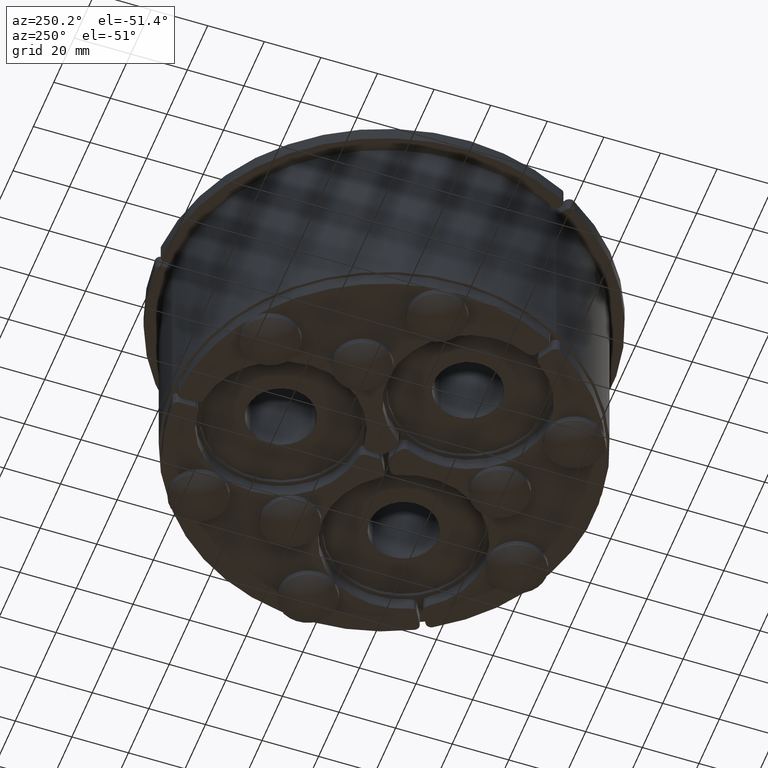
[diagram: clean part render]
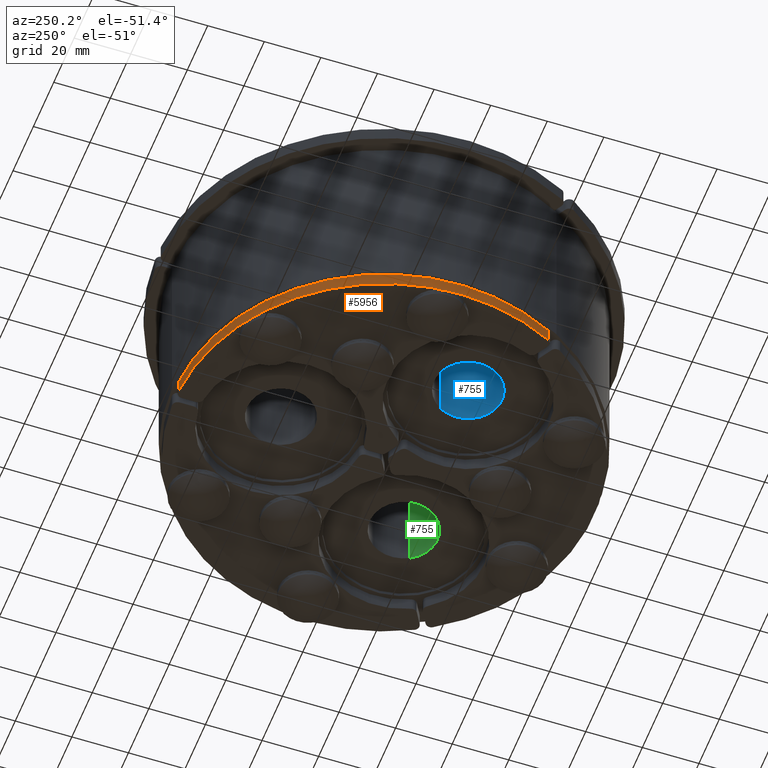
[diagram: same view with three faces highlighted in distinct colors, each labeled with its STEP entity id]
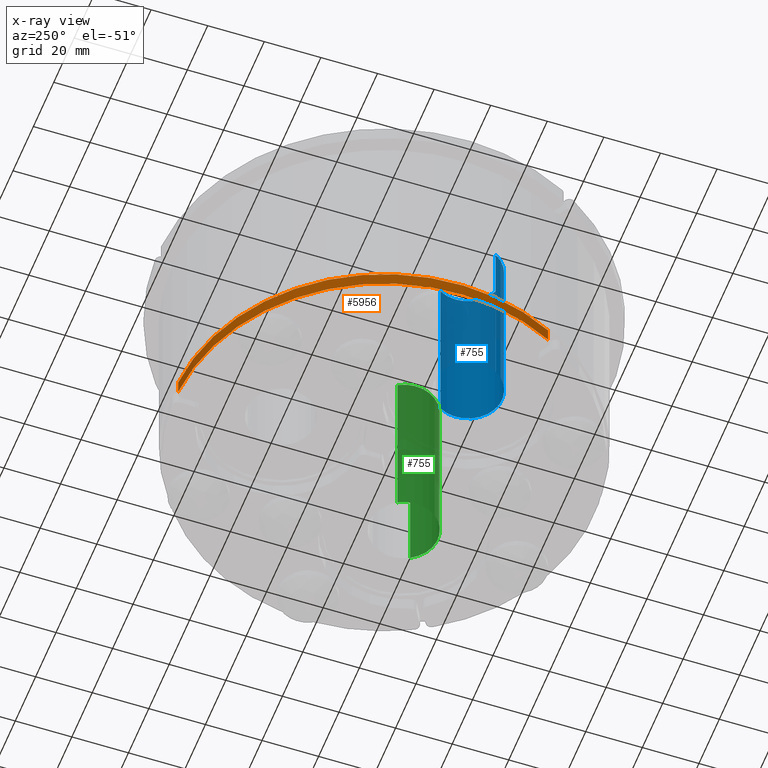
[diagram: x-ray of the same camera — body ghosted, the three highlighted faces saturated]
A machine part, auxiliary view with three faces highlighted in distinct colors.
The next image is the same camera in x-ray (body ghosted, the three faces saturated) — at least one of them is partly hidden behind the body in this view.
Their STEP definitions:

[orange] entity #5956 — the highlighted cylindrical surface (partial cylindrical patch) has radius 74 mm, axis along (0, 0, 1).
#5500=CARTESIAN_POINT('',(62.488558943326886,-39.638112987204153,5.0));
#5501=VERTEX_POINT('',#5500);
#5509=CARTESIAN_POINT('',(62.488558943326886,-39.638112987204153,0.0));
#5510=VERTEX_POINT('',#5509);
#5511=CARTESIAN_POINT('',(62.488558943326879,-39.638112987204153,5.0));
#5512=DIRECTION('',(0.0,0.0,-1.0));
#5513=VECTOR('',#5512,5.0);
#5514=LINE('',#5511,#5513);
#5515=EDGE_CURVE('',#5501,#5510,#5514,.T.);
#5572=CARTESIAN_POINT('',(-62.488558943326851,-39.63811298720421,0.0));
#5573=VERTEX_POINT('',#5572);
#5574=CARTESIAN_POINT('',(0.0,0.0,0.0));
#5575=DIRECTION('',(0.0,0.0,1.0));
#5576=DIRECTION('',(-0.859189568782182,-0.51165739015076,0.0));
#5577=AXIS2_PLACEMENT_3D('',#5574,#5575,#5576);
#5578=CIRCLE('',#5577,74.0);
#5579=EDGE_CURVE('',#5573,#5510,#5578,.T.);
#5912=CARTESIAN_POINT('',(-62.488558943326851,-39.63811298720421,5.0));
#5913=VERTEX_POINT('',#5912);
#5930=CARTESIAN_POINT('',(-62.488558943326844,-39.63811298720421,0.0));
#5931=DIRECTION('',(0.0,0.0,1.0));
#5932=VECTOR('',#5931,5.0);
#5933=LINE('',#5930,#5932);
#5934=EDGE_CURVE('',#5573,#5913,#5933,.T.);
#5939=CARTESIAN_POINT('',(0.0,0.0,0.0));
#5940=DIRECTION('',(0.0,0.0,1.0));
#5941=DIRECTION('',(-0.859189568782182,-0.51165739015076,0.0));
#5942=AXIS2_PLACEMENT_3D('',#5939,#5940,#5941);
#5943=CYLINDRICAL_SURFACE('',#5942,74.0);
#5944=ORIENTED_EDGE('',*,*,#5515,.F.);
#5945=CARTESIAN_POINT('',(0.0,0.0,5.0));
#5946=DIRECTION('',(0.0,0.0,1.0));
#5947=DIRECTION('',(-0.859189568782182,-0.51165739015076,0.0));
#5948=AXIS2_PLACEMENT_3D('',#5945,#5946,#5947);
#5949=CIRCLE('',#5948,74.0);
#5950=EDGE_CURVE('',#5913,#5501,#5949,.T.);
#5951=ORIENTED_EDGE('',*,*,#5950,.F.);
#5952=ORIENTED_EDGE('',*,*,#5934,.F.);
#5953=ORIENTED_EDGE('',*,*,#5579,.T.);
#5954=EDGE_LOOP('',(#5944,#5951,#5952,#5953));
#5955=FACE_OUTER_BOUND('',#5954,.T.);
#5956=ADVANCED_FACE('',(#5955),#5943,.T.);

[blue] entity #755 — the highlighted cylindrical surface (edge-blend (fillet) strip) has radius 12 mm, axis along (0, 0, 1).
#633=CARTESIAN_POINT('',(-31.250000000000004,-1.194959E-015,12.000000000000002));
#634=VERTEX_POINT('',#633);
#652=CARTESIAN_POINT('',(-31.25,2.664535E-015,-12.000000000000002));
#653=VERTEX_POINT('',#652);
#660=CARTESIAN_POINT('',(-31.250000000000004,0.0,0.0));
#661=DIRECTION('',(1.0,0.0,0.0));
#662=DIRECTION('',(0.0,0.0,-1.0));
#663=AXIS2_PLACEMENT_3D('',#660,#661,#662);
#664=CIRCLE('',#663,12.000000000000002);
#665=EDGE_CURVE('',#653,#634,#664,.T.);
#707=CARTESIAN_POINT('',(31.25,-1.194959E-015,12.000000000000002));
#708=VERTEX_POINT('',#707);
#715=CARTESIAN_POINT('',(31.25,2.664535E-015,-12.000000000000002));
#716=VERTEX_POINT('',#715);
#717=CARTESIAN_POINT('',(31.25,0.0,0.0));
#718=DIRECTION('',(1.0,0.0,0.0));
#719=DIRECTION('',(0.0,0.0,-1.0));
#720=AXIS2_PLACEMENT_3D('',#717,#718,#719);
#721=CIRCLE('',#720,12.000000000000002);
#722=EDGE_CURVE('',#716,#708,#721,.T.);
#734=CARTESIAN_POINT('',(0.0,0.0,0.0));
#735=DIRECTION('',(1.0,0.0,0.0));
#736=DIRECTION('',(0.0,0.0,-1.0));
#737=AXIS2_PLACEMENT_3D('',#734,#735,#736);
#738=CYLINDRICAL_SURFACE('',#737,12.000000000000002);
#739=CARTESIAN_POINT('',(31.25,-1.194959E-015,12.000000000000002));
#740=DIRECTION('',(-1.0,0.0,0.0));
#741=VECTOR('',#740,62.5);
#742=LINE('',#739,#741);
#743=EDGE_CURVE('',#708,#634,#742,.T.);
#744=ORIENTED_EDGE('',*,*,#743,.T.);
#745=ORIENTED_EDGE('',*,*,#665,.F.);
#746=CARTESIAN_POINT('',(31.25,2.664535E-015,-12.000000000000002));
#747=DIRECTION('',(-1.0,0.0,0.0));
#748=VECTOR('',#747,62.5);
#749=LINE('',#746,#748);
#750=EDGE_CURVE('',#716,#653,#749,.T.);
#751=ORIENTED_EDGE('',*,*,#750,.F.);
#752=ORIENTED_EDGE('',*,*,#722,.T.);
#753=EDGE_LOOP('',(#744,#745,#751,#752));
#754=FACE_OUTER_BOUND('',#753,.T.);
#755=ADVANCED_FACE('',(#754),#738,.F.);

[green] entity #755 — the highlighted cylindrical surface (edge-blend (fillet) strip) has radius 12 mm, axis along (0, 0, 1).
#633=CARTESIAN_POINT('',(-31.250000000000004,-1.194959E-015,12.000000000000002));
#634=VERTEX_POINT('',#633);
#652=CARTESIAN_POINT('',(-31.25,2.664535E-015,-12.000000000000002));
#653=VERTEX_POINT('',#652);
#660=CARTESIAN_POINT('',(-31.250000000000004,0.0,0.0));
#661=DIRECTION('',(1.0,0.0,0.0));
#662=DIRECTION('',(0.0,0.0,-1.0));
#663=AXIS2_PLACEMENT_3D('',#660,#661,#662);
#664=CIRCLE('',#663,12.000000000000002);
#665=EDGE_CURVE('',#653,#634,#664,.T.);
#707=CARTESIAN_POINT('',(31.25,-1.194959E-015,12.000000000000002));
#708=VERTEX_POINT('',#707);
#715=CARTESIAN_POINT('',(31.25,2.664535E-015,-12.000000000000002));
#716=VERTEX_POINT('',#715);
#717=CARTESIAN_POINT('',(31.25,0.0,0.0));
#718=DIRECTION('',(1.0,0.0,0.0));
#719=DIRECTION('',(0.0,0.0,-1.0));
#720=AXIS2_PLACEMENT_3D('',#717,#718,#719);
#721=CIRCLE('',#720,12.000000000000002);
#722=EDGE_CURVE('',#716,#708,#721,.T.);
#734=CARTESIAN_POINT('',(0.0,0.0,0.0));
#735=DIRECTION('',(1.0,0.0,0.0));
#736=DIRECTION('',(0.0,0.0,-1.0));
#737=AXIS2_PLACEMENT_3D('',#734,#735,#736);
#738=CYLINDRICAL_SURFACE('',#737,12.000000000000002);
#739=CARTESIAN_POINT('',(31.25,-1.194959E-015,12.000000000000002));
#740=DIRECTION('',(-1.0,0.0,0.0));
#741=VECTOR('',#740,62.5);
#742=LINE('',#739,#741);
#743=EDGE_CURVE('',#708,#634,#742,.T.);
#744=ORIENTED_EDGE('',*,*,#743,.T.);
#745=ORIENTED_EDGE('',*,*,#665,.F.);
#746=CARTESIAN_POINT('',(31.25,2.664535E-015,-12.000000000000002));
#747=DIRECTION('',(-1.0,0.0,0.0));
#748=VECTOR('',#747,62.5);
#749=LINE('',#746,#748);
#750=EDGE_CURVE('',#716,#653,#749,.T.);
#751=ORIENTED_EDGE('',*,*,#750,.F.);
#752=ORIENTED_EDGE('',*,*,#722,.T.);
#753=EDGE_LOOP('',(#744,#745,#751,#752));
#754=FACE_OUTER_BOUND('',#753,.T.);
#755=ADVANCED_FACE('',(#754),#738,.F.);